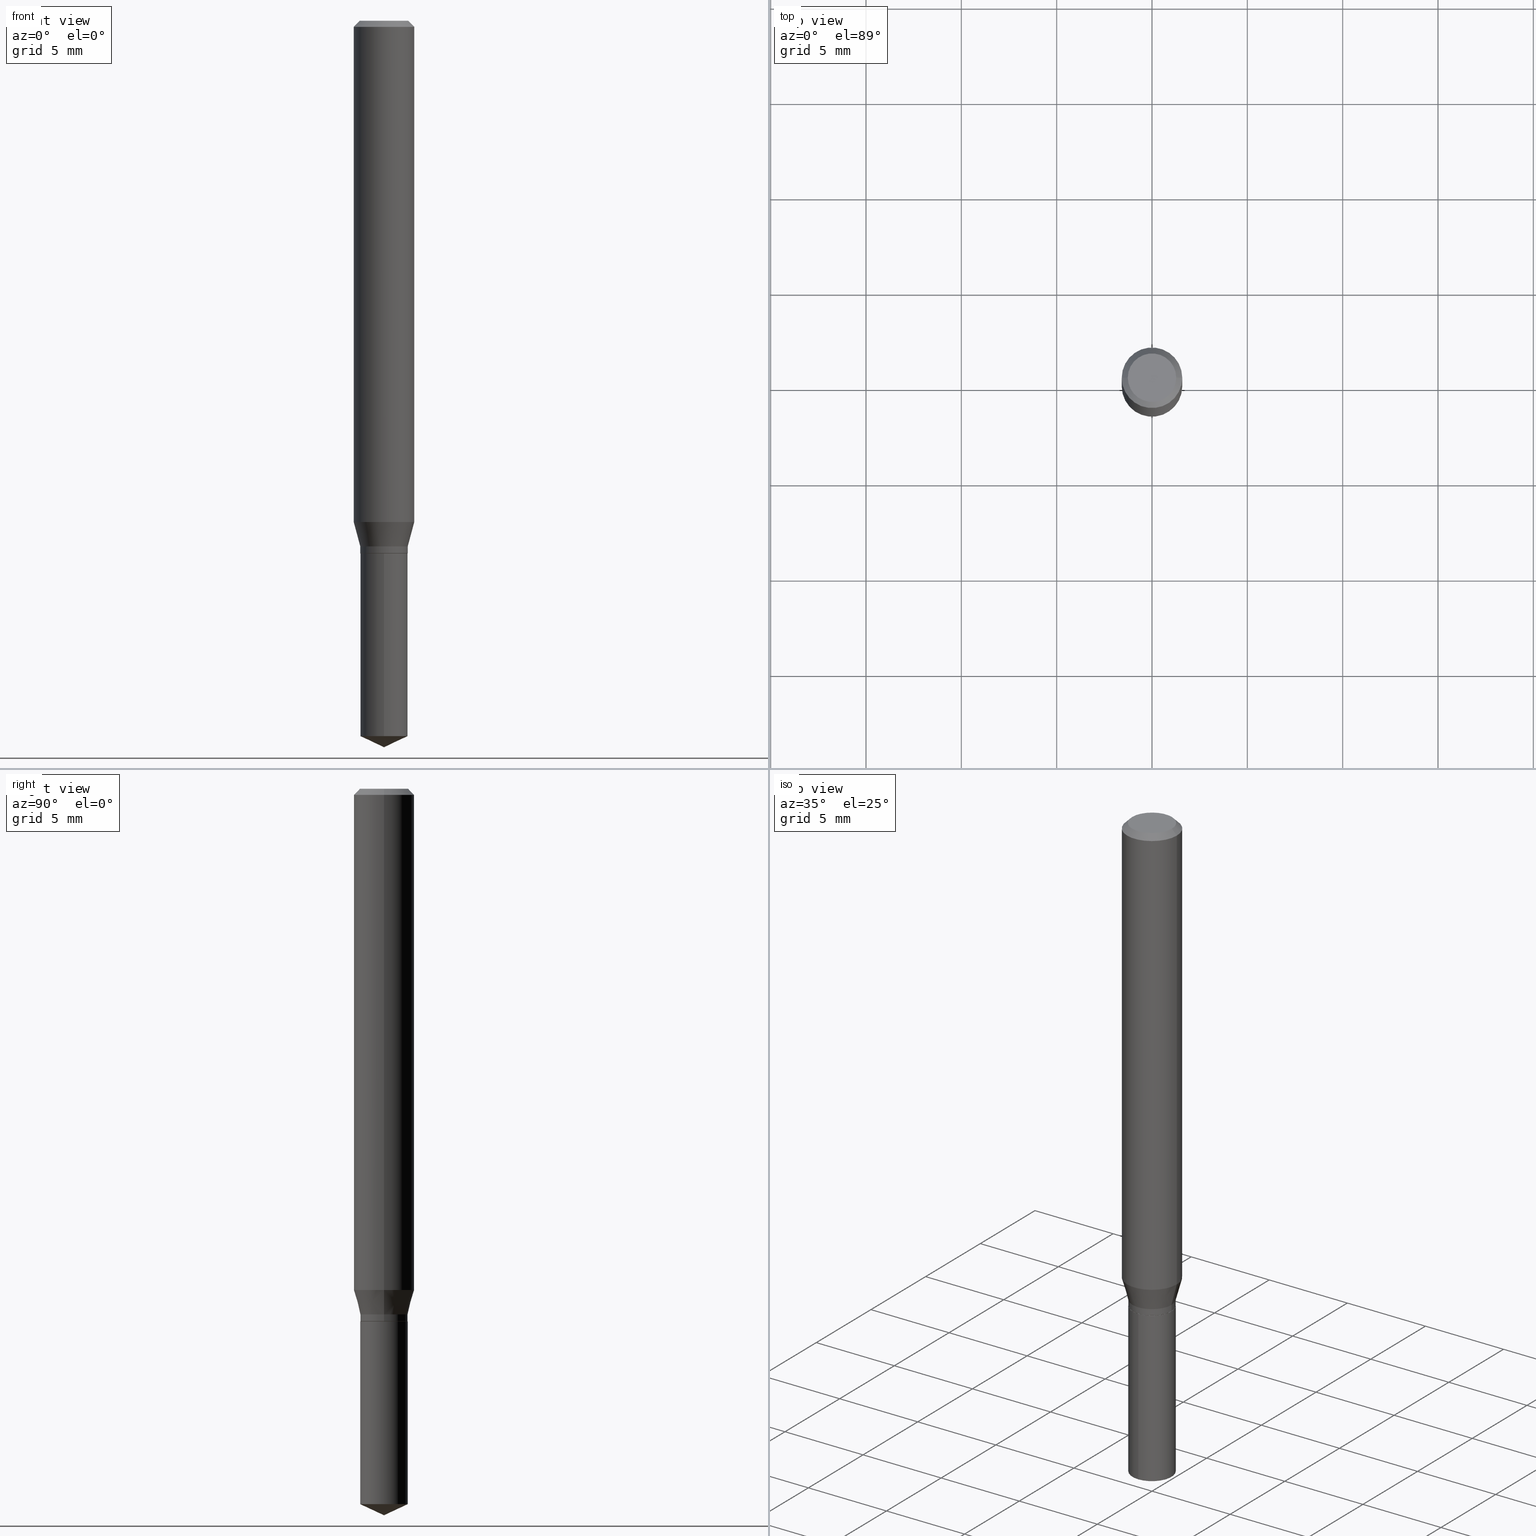
[diagram: canonical four-view strip — front | top / right | iso, engineering-drawing reading convention]
A machine part, canonical four-view strip (front | top / right | iso — engineering-drawing reading convention). The complete STEP part file that produces these views, byte-faithful:
ISO-10303-21;
HEADER;
FILE_DESCRIPTION (( 'STEP AP203' ),
    '1' );
FILE_NAME ('07206.STEP',
    '2024-04-23T20:00:11',
    ( '' ),
    ( '' ),
    'SwSTEP 2.0',
    'SolidWorks 2023',
    '' );
FILE_SCHEMA (( 'CONFIG_CONTROL_DESIGN' ));
ENDSEC;

DATA;
#1 = FACE_OUTER_BOUND ( 'NONE', #95, .T. ) ;
#2 = EDGE_CURVE ( 'NONE', #207, #227, #361, .T. ) ;
#3 = DIRECTION ( 'NONE',  ( -2.445468806185136877E-29, 3.491481338843145188E-15, 1.000000000000000000 ) ) ;
#4 = CARTESIAN_POINT ( 'NONE',  ( 0.000000000000000000, 0.000000000000000000, 0.000000000000000000 ) ) ;
#5 = CONICAL_SURFACE ( 'NONE', #208, 0.04850000000000000144, 0.7853981633974141952 ) ;
#6 = ADVANCED_FACE ( 'NONE', ( #23 ), #293, .T. ) ;
#7 = CIRCLE ( 'NONE', #54, 0.04900000000000000189 ) ;
#8 = DIRECTION ( 'NONE',  ( -2.445399690415121530E-29, 3.491580316559632610E-15, 1.000000000000000000 ) ) ;
#9 = DIRECTION ( 'NONE',  ( -2.445399690415121530E-29, 3.491580316559632610E-15, 1.000000000000000000 ) ) ;
#10 = DIRECTION ( 'NONE',  ( -6.982962677686265922E-15, -1.000000000000000000, 5.575199987069924823E-15 ) ) ;
#11 = EDGE_LOOP ( 'NONE', ( #166, #56, #323, #430 ) ) ;
#12 = VECTOR ( 'NONE', #338, 39.37007874015748143 ) ;
#13 = EDGE_CURVE ( 'NONE', #129, #97, #404, .T. ) ;
#14 = ORIENTED_EDGE ( 'NONE', *, *, #43, .T. ) ;
#15 = DIRECTION ( 'NONE',  ( 1.000000000000000000, -6.982962677686266711E-15, 0.000000000000000000 ) ) ;
#16 = EDGE_LOOP ( 'NONE', ( #289, #443, #461 ) ) ;
#17 = EDGE_CURVE ( 'NONE', #97, #210, #333, .T. ) ;
#18 = EDGE_LOOP ( 'NONE', ( #169, #109, #485, #393 ) ) ;
#19 = CARTESIAN_POINT ( 'NONE',  ( 3.056836007731442729E-31, -4.364351673553962300E-17, -0.01250000000000008916 ) ) ;
#20 = AXIS2_PLACEMENT_3D ( 'NONE', #452, #284, #380 ) ;
#21 = ORIENTED_EDGE ( 'NONE', *, *, #423, .F. ) ;
#22 = EDGE_CURVE ( 'NONE', #210, #165, #37, .T. ) ;
#23 = FACE_OUTER_BOUND ( 'NONE', #408, .T. ) ;
#24 = VERTEX_POINT ( 'NONE', #182 ) ;
#25 = CARTESIAN_POINT ( 'NONE',  ( 0.04900000000000000189, -3.421651712066270747E-16, 2.389326620140008440E-30 ) ) ;
#26 = CALENDAR_DATE ( 2024, 23, 4 ) ;
#27 = AXIS2_PLACEMENT_3D ( 'NONE', #115, #38, #311 ) ;
#28 = ORIENTED_EDGE ( 'NONE', *, *, #188, .T. ) ;
#29 = AXIS2_PLACEMENT_3D ( 'NONE', #19, #131, #15 ) ;
#30 = EDGE_CURVE ( 'NONE', #174, #24, #225, .T. ) ;
#31 = PRODUCT_DEFINITION_SHAPE ( 'NONE', 'NONE',  #219 ) ;
#32 = CARTESIAN_POINT ( 'NONE',  ( -0.04900000000000000189, -3.441138756524016918E-15, -1.085299999999999931 ) ) ;
#33 = ORIENTED_EDGE ( 'NONE', *, *, #22, .F. ) ;
#34 = DIRECTION ( 'NONE',  ( 1.000000000000000000, -6.982962677686265922E-15, 4.875957971899673662E-29 ) ) ;
#35 = LINE ( 'NONE', #446, #204 ) ;
#36 = DIRECTION ( 'NONE',  ( 1.000000000000000000, -6.982962677686264344E-15, 0.000000000000000000 ) ) ;
#37 = CIRCLE ( 'NONE', #368, 0.04900000000000000189 ) ;
#38 = DIRECTION ( 'NONE',  ( 2.445399690415121250E-29, -3.491580316559632610E-15, -1.000000000000000000 ) ) ;
#39 = CC_DESIGN_PERSON_AND_ORGANIZATION_ASSIGNMENT ( #112, #268, ( #314 ) ) ;
#40 = CARTESIAN_POINT ( 'NONE',  ( 1.946643104841063088E-47, -2.779290439833033990E-33, -7.960204194457798443E-19 ) ) ;
#41 = PLANE ( 'NONE',  #479 ) ;
#42 = CYLINDRICAL_SURFACE ( 'NONE', #392, 0.04900000000000000189 ) ;
#43 = EDGE_CURVE ( 'NONE', #248, #432, #104, .T. ) ;
#44 = FACE_OUTER_BOUND ( 'NONE', #292, .T. ) ;
#45 = FACE_OUTER_BOUND ( 'NONE', #222, .T. ) ;
#46 = EDGE_CURVE ( 'NONE', #227, #24, #260, .T. ) ;
#47 = VECTOR ( 'NONE', #106, 39.37007874015748143 ) ;
#48 = LINE ( 'NONE', #346, #249 ) ;
#49 = APPLICATION_CONTEXT ( 'configuration controlled 3d designs of mechanical parts and assemblies' ) ;
#50 = DIRECTION ( 'NONE',  ( 1.000000000000000000, -6.982962677686263555E-15, 0.000000000000000000 ) ) ;
#51 = EDGE_LOOP ( 'NONE', ( #426, #178, #132, #318 ) ) ;
#52 = ORIENTED_EDGE ( 'NONE', *, *, #59, .F. ) ;
#53 = CLOSED_SHELL ( 'NONE', ( #68, #223, #161, #389, #302 ) ) ;
#54 = AXIS2_PLACEMENT_3D ( 'NONE', #413, #382, #200 ) ;
#55 = CC_DESIGN_PERSON_AND_ORGANIZATION_ASSIGNMENT ( #436, #265, ( #314 ) ) ;
#56 = ORIENTED_EDGE ( 'NONE', *, *, #209, .T. ) ;
#57 = CARTESIAN_POINT ( 'NONE',  ( 0.06250000000000000000, -4.800786840909313294E-16, -0.01250000000000008916 ) ) ;
#58 = ORIENTED_EDGE ( 'NONE', *, *, #30, .F. ) ;
#59 = EDGE_CURVE ( 'NONE', #287, #227, #127, .T. ) ;
#60 = ORIENTED_EDGE ( 'NONE', *, *, #46, .F. ) ;
#61 = MANIFOLD_SOLID_BREP ( 'Body-Move/Copy2[1]', #53 ) ;
#62 = CC_DESIGN_PERSON_AND_ORGANIZATION_ASSIGNMENT ( #484, #192, ( #235 ) ) ;
#63 = CIRCLE ( 'NONE', #329, 0.04900000000000000189 ) ;
#64 = CIRCLE ( 'NONE', #29, 0.06250000000000000000 ) ;
#65 = ORIENTED_EDGE ( 'NONE', *, *, #362, .T. ) ;
#66 = ORIENTED_EDGE ( 'NONE', *, *, #2, .T. ) ;
#67 = LINE ( 'NONE', #32, #336 ) ;
#68 = ADVANCED_FACE ( 'NONE', ( #315 ), #42, .T. ) ;
#69 = PERSON_AND_ORGANIZATION ( #121, #184 ) ;
#70 = CARTESIAN_POINT ( 'NONE',  ( 2.654067295352728844E-29, -3.789304697046466319E-15, -1.085299999999999931 ) ) ;
#71 = DIRECTION ( 'NONE',  ( 2.438088387897960049E-29, -3.491481338843145188E-15, -1.000000000000000000 ) ) ;
#72 = FACE_OUTER_BOUND ( 'NONE', #296, .T. ) ;
#73 = CALENDAR_DATE ( 2024, 23, 4 ) ;
#74 = ADVANCED_FACE ( 'NONE', ( #155 ), #417, .T. ) ;
#75 = VECTOR ( 'NONE', #437, 39.37007874015748143 ) ;
#76 = ORIENTED_EDGE ( 'NONE', *, *, #273, .T. ) ;
#77 = CC_DESIGN_APPROVAL ( #82, ( #314 ) ) ;
#78 = DIRECTION ( 'NONE',  ( -2.445468806185136877E-29, 3.491481338843145188E-15, 1.000000000000000000 ) ) ;
#79 = ORIENTED_EDGE ( 'NONE', *, *, #22, .T. ) ;
#80 =( NAMED_UNIT ( * ) SI_UNIT ( $, .STERADIAN. ) SOLID_ANGLE_UNIT ( ) );
#81 = DIRECTION ( 'NONE',  ( -2.445468806185136597E-29, 3.491481338843145583E-15, 1.000000000000000000 ) ) ;
#82 = APPROVAL ( #481, 'UNSPECIFIED' ) ;
#83 = DIRECTION ( 'NONE',  ( -2.445468806185136597E-29, 3.491481338843145583E-15, 1.000000000000000000 ) ) ;
#84 = CARTESIAN_POINT ( 'NONE',  ( 3.612300441428068542E-29, -5.157482217958238587E-15, -1.477150924750405325 ) ) ;
#85 = AXIS2_PLACEMENT_3D ( 'NONE', #124, #280, #89 ) ;
#86 = AXIS2_PLACEMENT_3D ( 'NONE', #465, #213, #50 ) ;
#87 = CARTESIAN_POINT ( 'NONE',  ( -0.06250000000000000000, -1.384429793226810224E-15, -0.01250000000000008916 ) ) ;
#88 = CARTESIAN_POINT ( 'NONE',  ( 2.530858008607123662E-29, -3.613394489418208092E-15, -1.034917314097819840 ) ) ;
#89 = DIRECTION ( 'NONE',  ( -6.982962677686267499E-15, -1.000000000000000000, 3.520397390770434543E-15 ) ) ;
#90 = LINE ( 'NONE', #288, #108 ) ;
#91 = CARTESIAN_POINT ( 'NONE',  ( 0.04900000000000000189, -4.131469868253092851E-15, -1.085299999999999931 ) ) ;
#92 = VECTOR ( 'NONE', #3, 39.37007874015748143 ) ;
#93 = ORIENTED_EDGE ( 'NONE', *, *, #330, .F. ) ;
#94 = ORIENTED_EDGE ( 'NONE', *, *, #238, .F. ) ;
#95 = EDGE_LOOP ( 'NONE', ( #253, #93 ) ) ;
#96 =( GEOMETRIC_REPRESENTATION_CONTEXT ( 3 ) GLOBAL_UNCERTAINTY_ASSIGNED_CONTEXT ( ( #449 ) ) GLOBAL_UNIT_ASSIGNED_CONTEXT ( ( #438, #301, #80 ) ) REPRESENTATION_CONTEXT ( 'NONE', 'WORKASPACE' ) );
#97 = VERTEX_POINT ( 'NONE', #239 ) ;
#98 = ORIENTED_EDGE ( 'NONE', *, *, #283, .F. ) ;
#99 = AXIS2_PLACEMENT_3D ( 'NONE', #88, #281, #36 ) ;
#100 = APPROVAL_PERSON_ORGANIZATION ( #277, #434, #414 ) ;
#101 = APPROVAL_DATE_TIME ( #363, #434 ) ;
#102 = ORIENTED_EDGE ( 'NONE', *, *, #487, .F. ) ;
#103 = DATE_AND_TIME ( #143, #176 ) ;
#104 = LINE ( 'NONE', #482, #285 ) ;
#105 = DIRECTION ( 'NONE',  ( 1.000000000000000000, -6.982962677686261977E-15, 0.000000000000000000 ) ) ;
#106 = DIRECTION ( 'NONE',  ( -2.445468806185136877E-29, 3.491481338843145188E-15, 1.000000000000000000 ) ) ;
#107 = AXIS2_PLACEMENT_3D ( 'NONE', #483, #252, #242 ) ;
#108 = VECTOR ( 'NONE', #420, 39.37007874015747433 ) ;
#109 = ORIENTED_EDGE ( 'NONE', *, *, #250, .T. ) ;
#110 = VECTOR ( 'NONE', #416, 39.37007874015748143 ) ;
#111 = PLANE ( 'NONE',  #264 ) ;
#112 = PERSON_AND_ORGANIZATION ( #121, #184 ) ;
#113 = DIRECTION ( 'NONE',  ( -6.328713451373380423E-15, -0.9063077870366499367, 0.4226182617406991082 ) ) ;
#114 = CARTESIAN_POINT ( 'NONE',  ( 2.690015686803650369E-29, -3.840629472727460101E-15, -1.100000000000000089 ) ) ;
#115 = CARTESIAN_POINT ( 'NONE',  ( 2.690015686803650369E-29, -3.840629472727460101E-15, -1.100000000000000089 ) ) ;
#116 = LINE ( 'NONE', #317, #110 ) ;
#117 = CIRCLE ( 'NONE', #454, 0.04900000000000000189 ) ;
#118 = APPLICATION_PROTOCOL_DEFINITION ( 'international standard', 'config_control_design', 1994, #49 ) ;
#119 = LOCAL_TIME ( 16, 0, 11.00000000000000000, #376 ) ;
#120 = CARTESIAN_POINT ( 'NONE',  ( 0.04900000000000000189, -4.181048903264665130E-15, -1.099499999999999922 ) ) ;
#121 = PERSON ( 'UNSPECIFIED', 'UNSPECIFIED', 'UNSPECIFIED', ('UNSPECIFIED'), ('UNSPECIFIED'), ('UNSPECIFIED') ) ;
#122 = FACE_OUTER_BOUND ( 'NONE', #16, .T. ) ;
#123 = DIRECTION ( 'NONE',  ( -6.982962677686265922E-15, -1.000000000000000000, 2.787599993534962411E-15 ) ) ;
#124 = CARTESIAN_POINT ( 'NONE',  ( -9.260740279983036507E-28, 1.322265303911854087E-13, 37.87007874015748143 ) ) ;
#125 = DIRECTION ( 'NONE',  ( 1.000000000000000000, -6.982962677686263555E-15, 0.000000000000000000 ) ) ;
#126 = ORIENTED_EDGE ( 'NONE', *, *, #490, .T. ) ;
#127 = CIRCLE ( 'NONE', #444, 0.04900000000000000189 ) ;
#128 = AXIS2_PLACEMENT_3D ( 'NONE', #170, #324, #468 ) ;
#129 = VERTEX_POINT ( 'NONE', #383 ) ;
#130 = PRODUCT_RELATED_PRODUCT_CATEGORY ( 'detail', '', ( #187 ) ) ;
#131 = DIRECTION ( 'NONE',  ( -2.445468806185136597E-29, 3.491481338843145583E-15, 1.000000000000000000 ) ) ;
#132 = ORIENTED_EDGE ( 'NONE', *, *, #355, .T. ) ;
#133 = DIRECTION ( 'NONE',  ( -6.982962677686265922E-15, -1.000000000000000000, 2.787599993534962411E-15 ) ) ;
#134 = EDGE_LOOP ( 'NONE', ( #304, #79 ) ) ;
#135 = AXIS2_PLACEMENT_3D ( 'NONE', #274, #81, #278 ) ;
#136 = DIRECTION ( 'NONE',  ( -2.445399690415121530E-29, 3.491580316559632610E-15, 1.000000000000000000 ) ) ;
#137 = EDGE_LOOP ( 'NONE', ( #425, #28, #431, #33 ) ) ;
#138 = CARTESIAN_POINT ( 'NONE',  ( -0.04850000000000000144, -3.493367018709700793E-15, -1.100000000000000089 ) ) ;
#139 = ORIENTED_EDGE ( 'NONE', *, *, #2, .F. ) ;
#140 = DIRECTION ( 'NONE',  ( -2.445399690415121530E-29, 3.491580316559632610E-15, 1.000000000000000000 ) ) ;
#141 = DIRECTION ( 'NONE',  ( 1.000000000000000000, -6.982962677686266711E-15, 4.876176775795935232E-29 ) ) ;
#142 = CONICAL_SURFACE ( 'NONE', #86, 0.04900000000000000189, 0.2617993877991500740 ) ;
#143 = CALENDAR_DATE ( 2024, 23, 4 ) ;
#144 = ORIENTED_EDGE ( 'NONE', *, *, #372, .T. ) ;
#145 = CC_DESIGN_DATE_AND_TIME_ASSIGNMENT ( #262, #230, ( #219 ) ) ;
#146 = APPROVAL_DATE_TIME ( #185, #470 ) ;
#147 = DIRECTION ( 'NONE',  ( 0.7071067811865451302, -7.319954787623248157E-15, -0.7071067811865499042 ) ) ;
#148 = CARTESIAN_POINT ( 'NONE',  ( -0.06250000000000012490, -3.169305279568144687E-15, -1.034917314097819840 ) ) ;
#149 = APPROVAL_STATUS ( 'not_yet_approved' ) ;
#150 = DIRECTION ( 'NONE',  ( -2.445468806185136597E-29, 3.491481338843145583E-15, 1.000000000000000000 ) ) ;
#151 = AXIS2_PLACEMENT_3D ( 'NONE', #4, #243, #163 ) ;
#152 = LOCAL_TIME ( 16, 0, 11.00000000000000000, #158 ) ;
#153 = CARTESIAN_POINT ( 'NONE',  ( 2.690015686803650369E-29, -3.840629472727460101E-15, -1.100000000000000089 ) ) ;
#154 = CARTESIAN_POINT ( 'NONE',  ( 3.056836007731442729E-31, -4.364351673553962300E-17, -0.01250000000000008916 ) ) ;
#155 = FACE_OUTER_BOUND ( 'NONE', #247, .T. ) ;
#156 = DIRECTION ( 'NONE',  ( 1.000000000000000000, 0.000000000000000000, 0.000000000000000000 ) ) ;
#157 = CARTESIAN_POINT ( 'NONE',  ( 0.04850000000000000144, -4.179303162595243627E-15, -1.100000000000000089 ) ) ;
#158 = COORDINATED_UNIVERSAL_TIME_OFFSET ( 5, 0, .BEHIND. ) ;
#159 = CARTESIAN_POINT ( 'NONE',  ( 3.612300441428068542E-29, -5.157482217958238587E-15, -1.477150924750405325 ) ) ;
#160 = CONICAL_SURFACE ( 'NONE', #471, 0.04850000000000000144, 0.7853981633974141952 ) ;
#161 = ADVANCED_FACE ( 'NONE', ( #122 ), #175, .T. ) ;
#162 = DIRECTION ( 'NONE',  ( -1.000000000000000000, 6.982962677686266711E-15, 0.000000000000000000 ) ) ;
#163 = DIRECTION ( 'NONE',  ( 1.000000000000000000, -6.982962677686266711E-15, 4.876176775795935793E-29 ) ) ;
#164 = EDGE_CURVE ( 'NONE', #248, #475, #407, .T. ) ;
#165 = VERTEX_POINT ( 'NONE', #282 ) ;
#166 = ORIENTED_EDGE ( 'NONE', *, *, #30, .T. ) ;
#167 = CONICAL_SURFACE ( 'NONE', #275, 0.06250000000000000000, 0.7853981633974449483 ) ;
#168 = CC_DESIGN_APPROVAL ( #470, ( #235 ) ) ;
#169 = ORIENTED_EDGE ( 'NONE', *, *, #458, .F. ) ;
#170 = CARTESIAN_POINT ( 'NONE',  ( 3.056836007731442729E-31, -4.364351673553962300E-17, -0.01250000000000008916 ) ) ;
#171 = ORIENTED_EDGE ( 'NONE', *, *, #164, .T. ) ;
#172 = CC_DESIGN_PERSON_AND_ORGANIZATION_ASSIGNMENT ( #406, #453, ( #187 ) ) ;
#173 = CARTESIAN_POINT ( 'NONE',  ( -0.04900000000000000189, -3.465928274029803452E-15, -1.099499999999999922 ) ) ;
#174 = VERTEX_POINT ( 'NONE', #91 ) ;
#175 = CONICAL_SURFACE ( 'NONE', #85, 84.42940631927480410, 1.134464013796318005 ) ;
#176 = LOCAL_TIME ( 16, 0, 11.00000000000000000, #342 ) ;
#177 = ADVANCED_FACE ( 'NONE', ( #203 ), #160, .T. ) ;
#178 = ORIENTED_EDGE ( 'NONE', *, *, #439, .F. ) ;
#179 = DIRECTION ( 'NONE',  ( -1.000000000000000000, 6.982962677686266711E-15, 0.000000000000000000 ) ) ;
#180 = SECURITY_CLASSIFICATION_LEVEL ( 'unclassified' ) ;
#181 = CC_DESIGN_DATE_AND_TIME_ASSIGNMENT ( #103, #259, ( #235 ) ) ;
#182 = CARTESIAN_POINT ( 'NONE',  ( -0.04900000000000000189, -3.465928274029803452E-15, -1.085299999999999931 ) ) ;
#183 = DIRECTION ( 'NONE',  ( -2.445468806185136877E-29, 3.491481338843145188E-15, 1.000000000000000000 ) ) ;
#184 = ORGANIZATION ( 'UNSPECIFIED', 'UNSPECIFIED', '' ) ;
#185 = DATE_AND_TIME ( #26, #348 ) ;
#186 = CARTESIAN_POINT ( 'NONE',  ( 3.056836007731442729E-31, -4.364351673553962300E-17, -0.01250000000000008916 ) ) ;
#187 = PRODUCT ( '07206', '07206', '', ( #451 ) ) ;
#188 = EDGE_CURVE ( 'NONE', #97, #325, #63, .T. ) ;
#189 = APPROVAL_DATE_TIME ( #398, #82 ) ;
#190 = DIRECTION ( 'NONE',  ( 1.000000000000000000, -6.982962677686263555E-15, 0.000000000000000000 ) ) ;
#191 = EDGE_CURVE ( 'NONE', #129, #325, #35, .T. ) ;
#192 = PERSON_AND_ORGANIZATION_ROLE ( 'classification_officer' ) ;
#193 = CARTESIAN_POINT ( 'NONE',  ( -0.04999999999999999584, 3.709698922520826725E-16, -1.592040838894077649E-18 ) ) ;
#194 = CARTESIAN_POINT ( 'NONE',  ( 0.04999999999999999584, -4.077247707424184705E-16, -1.592040838888913461E-18 ) ) ;
#195 = AXIS2_PLACEMENT_3D ( 'NONE', #271, #381, #196 ) ;
#196 = DIRECTION ( 'NONE',  ( 1.000000000000000000, -6.982962677686265922E-15, 4.875957971899673662E-29 ) ) ;
#197 = DIRECTION ( 'NONE',  ( 0.000000000000000000, 0.000000000000000000, 1.000000000000000000 ) ) ;
#198 = CARTESIAN_POINT ( 'NONE',  ( -3.421651712065909350E-16, -0.04900000000000515749, -1.477150924750405103 ) ) ;
#199 = ADVANCED_FACE ( 'NONE', ( #352 ), #370, .T. ) ;
#200 = DIRECTION ( 'NONE',  ( 1.000000000000000000, -6.982962677686263555E-15, 0.000000000000000000 ) ) ;
#201 = DIRECTION ( 'NONE',  ( -6.982962677686265922E-15, -1.000000000000000000, 2.787599993534962411E-15 ) ) ;
#202 = CARTESIAN_POINT ( 'NONE',  ( 2.690015686803650369E-29, -3.840629472727460101E-15, -1.100000000000000089 ) ) ;
#203 = FACE_OUTER_BOUND ( 'NONE', #354, .T. ) ;
#204 = VECTOR ( 'NONE', #113, 39.37007874015748854 ) ;
#205 = DIRECTION ( 'NONE',  ( 0.7071067811865232589, -2.468850131082003836E-15, 0.7071067811865715536 ) ) ;
#206 = ORIENTED_EDGE ( 'NONE', *, *, #250, .F. ) ;
#207 = VERTEX_POINT ( 'NONE', #138 ) ;
#208 = AXIS2_PLACEMENT_3D ( 'NONE', #350, #345, #347 ) ;
#209 = EDGE_CURVE ( 'NONE', #24, #466, #67, .T. ) ;
#210 = VERTEX_POINT ( 'NONE', #440 ) ;
#211 = CARTESIAN_POINT ( 'NONE',  ( 3.893286209682126177E-47, -5.558580879666067980E-33, -1.592040838891559689E-18 ) ) ;
#212 = ORIENTED_EDGE ( 'NONE', *, *, #355, .F. ) ;
#213 = DIRECTION ( 'NONE',  ( -2.445468806185136597E-29, 3.491481338843145583E-15, 1.000000000000000000 ) ) ;
#214 = ORIENTED_EDGE ( 'NONE', *, *, #474, .T. ) ;
#215 = CC_DESIGN_APPROVAL ( #434, ( #219 ) ) ;
#216 = EDGE_CURVE ( 'NONE', #287, #174, #221, .T. ) ;
#217 = EDGE_LOOP ( 'NONE', ( #76, #357, #94, #291 ) ) ;
#218 = ADVANCED_BREP_SHAPE_REPRESENTATION ( '07206', ( #61, #228, #388 ), #96 ) ;
#219 = PRODUCT_DEFINITION ( 'UNKNOWN', '', #314, #351 ) ;
#220 = CARTESIAN_POINT ( 'NONE',  ( 2.690015686803650369E-29, -3.840629472727460101E-15, -1.100000000000000089 ) ) ;
#221 = LINE ( 'NONE', #25, #462 ) ;
#222 = EDGE_LOOP ( 'NONE', ( #139, #231, #144, #98 ) ) ;
#223 = ADVANCED_FACE ( 'NONE', ( #72 ), #428, .T. ) ;
#224 = DIRECTION ( 'NONE',  ( 1.000000000000000000, -6.982962677686264344E-15, 0.000000000000000000 ) ) ;
#225 = CIRCLE ( 'NONE', #488, 0.04900000000000000189 ) ;
#226 = CIRCLE ( 'NONE', #379, 0.04999999999999999584 ) ;
#227 = VERTEX_POINT ( 'NONE', #173 ) ;
#228 = MANIFOLD_SOLID_BREP ( 'Body-Move/Copy2[2]', #386 ) ;
#229 = LINE ( 'NONE', #233, #294 ) ;
#230 = DATE_TIME_ROLE ( 'creation_date' ) ;
#231 = ORIENTED_EDGE ( 'NONE', *, *, #330, .T. ) ;
#232 = FACE_OUTER_BOUND ( 'NONE', #18, .T. ) ;
#233 = CARTESIAN_POINT ( 'NONE',  ( 0.06250000000000006939, -4.364351673553921624E-16, 3.047610484872463374E-30 ) ) ;
#234 = DIRECTION ( 'NONE',  ( 1.000000000000000000, -6.982962677686266711E-15, 4.876176775795935793E-29 ) ) ;
#235 = SECURITY_CLASSIFICATION ( '', '', #180 ) ;
#236 = DIRECTION ( 'NONE',  ( -2.445468806185136597E-29, 3.491481338843145583E-15, 1.000000000000000000 ) ) ;
#237 = DIRECTION ( 'NONE',  ( 2.445468806185136597E-29, -3.491481338843145583E-15, -1.000000000000000000 ) ) ;
#238 = EDGE_CURVE ( 'NONE', #165, #210, #359, .T. ) ;
#239 = CARTESIAN_POINT ( 'NONE',  ( 3.481659405224852442E-16, 0.04899999999999485323, -1.477150924750405769 ) ) ;
#240 = CYLINDRICAL_SURFACE ( 'NONE', #151, 0.06250000000000006939 ) ;
#241 = ADVANCED_FACE ( 'NONE', ( #45 ), #5, .T. ) ;
#242 = DIRECTION ( 'NONE',  ( -6.982962677686267499E-15, -1.000000000000000000, 3.520397390770434543E-15 ) ) ;
#243 = DIRECTION ( 'NONE',  ( -2.445468806185136597E-29, 3.491481338843145583E-15, 1.000000000000000000 ) ) ;
#244 = AXIS2_PLACEMENT_3D ( 'NONE', #385, #136, #133 ) ;
#245 = VECTOR ( 'NONE', #390, 39.37007874015748143 ) ;
#246 = ADVANCED_FACE ( 'NONE', ( #232 ), #240, .T. ) ;
#247 = EDGE_LOOP ( 'NONE', ( #422, #295, #58, #464 ) ) ;
#248 = VERTEX_POINT ( 'NONE', #194 ) ;
#249 = VECTOR ( 'NONE', #205, 39.37007874015748854 ) ;
#250 = EDGE_CURVE ( 'NONE', #466, #254, #306, .T. ) ;
#251 = VERTEX_POINT ( 'NONE', #87 ) ;
#252 = DIRECTION ( 'NONE',  ( -2.445399690415121530E-29, 3.491580316559632610E-15, 1.000000000000000000 ) ) ;
#253 = ORIENTED_EDGE ( 'NONE', *, *, #474, .F. ) ;
#254 = VERTEX_POINT ( 'NONE', #384 ) ;
#255 = AXIS2_PLACEMENT_3D ( 'NONE', #310, #276, #450 ) ;
#256 = CC_DESIGN_SECURITY_CLASSIFICATION ( #235, ( #314 ) ) ;
#257 = CALENDAR_DATE ( 2024, 23, 4 ) ;
#258 = DIRECTION ( 'NONE',  ( -0.7071067811865232589, 7.493145998870265808E-15, 0.7071067811865715536 ) ) ;
#259 = DATE_TIME_ROLE ( 'classification_date' ) ;
#260 = LINE ( 'NONE', #300, #47 ) ;
#261 = DIRECTION ( 'NONE',  ( -2.445468806185136597E-29, 3.491481338843145583E-15, 1.000000000000000000 ) ) ;
#262 = DATE_AND_TIME ( #257, #119 ) ;
#263 = CARTESIAN_POINT ( 'NONE',  ( -0.04850000000000000144, -3.496016245883811994E-15, -1.100000000000000089 ) ) ;
#264 = AXIS2_PLACEMENT_3D ( 'NONE', #40, #71, #305 ) ;
#265 = PERSON_AND_ORGANIZATION_ROLE ( 'creator' ) ;
#266 = ORIENTED_EDGE ( 'NONE', *, *, #423, .T. ) ;
#267 = CARTESIAN_POINT ( 'NONE',  ( 2.530858008607123662E-29, -3.613394489418208092E-15, -1.034917314097819840 ) ) ;
#268 = PERSON_AND_ORGANIZATION_ROLE ( 'design_supplier' ) ;
#269 = ADVANCED_FACE ( 'NONE', ( #1 ), #41, .F. ) ;
#270 = DIRECTION ( 'NONE',  ( -2.438088387897960049E-29, 3.491481338843145188E-15, 1.000000000000000000 ) ) ;
#271 = CARTESIAN_POINT ( 'NONE',  ( 3.893286209682126177E-47, -5.558580879666067980E-33, -1.592040838891559689E-18 ) ) ;
#272 =( LENGTH_UNIT ( ) NAMED_UNIT ( * ) SI_UNIT ( $, .METRE. ) );
#273 = EDGE_CURVE ( 'NONE', #325, #97, #419, .T. ) ;
#274 = CARTESIAN_POINT ( 'NONE',  ( 2.654067295352728844E-29, -3.789304697046466319E-15, -1.085299999999999931 ) ) ;
#275 = AXIS2_PLACEMENT_3D ( 'NONE', #154, #237, #162 ) ;
#276 = DIRECTION ( 'NONE',  ( -2.445468806185136597E-29, 3.491481338843145583E-15, 1.000000000000000000 ) ) ;
#277 = PERSON_AND_ORGANIZATION ( #121, #184 ) ;
#278 = DIRECTION ( 'NONE',  ( 1.000000000000000000, -6.982962677686263555E-15, 0.000000000000000000 ) ) ;
#279 = ADVANCED_FACE ( 'NONE', ( #344 ), #167, .T. ) ;
#280 = DIRECTION ( 'NONE',  ( -2.445399690415121530E-29, 3.491580316559632610E-15, 1.000000000000000000 ) ) ;
#281 = DIRECTION ( 'NONE',  ( -2.445468806185136597E-29, 3.491481338843145583E-15, 1.000000000000000000 ) ) ;
#282 = CARTESIAN_POINT ( 'NONE',  ( -3.421651712066001549E-16, -0.04900000000000384603, -1.099999999999999867 ) ) ;
#283 = EDGE_CURVE ( 'NONE', #227, #287, #117, .T. ) ;
#284 = DIRECTION ( 'NONE',  ( -2.445468806185136597E-29, 3.491481338843145583E-15, 1.000000000000000000 ) ) ;
#285 = VECTOR ( 'NONE', #147, 39.37007874015748143 ) ;
#286 = CONICAL_SURFACE ( 'NONE', #135, 0.04900000000000000189, 0.2617993877991500740 ) ;
#287 = VERTEX_POINT ( 'NONE', #120 ) ;
#288 = CARTESIAN_POINT ( 'NONE',  ( 0.04900000000000000189, -4.131469868253092851E-15, -1.085299999999999931 ) ) ;
#289 = ORIENTED_EDGE ( 'NONE', *, *, #13, .F. ) ;
#290 = FACE_OUTER_BOUND ( 'NONE', #11, .T. ) ;
#291 = ORIENTED_EDGE ( 'NONE', *, *, #409, .F. ) ;
#292 = EDGE_LOOP ( 'NONE', ( #321, #65, #396, #206 ) ) ;
#293 = CONICAL_SURFACE ( 'NONE', #395, 0.06250000000000000000, 0.7853981633974449483 ) ;
#294 = VECTOR ( 'NONE', #78, 39.37007874015748143 ) ;
#295 = ORIENTED_EDGE ( 'NONE', *, *, #46, .T. ) ;
#296 = EDGE_LOOP ( 'NONE', ( #469, #360, #429 ) ) ;
#297 = VERTEX_POINT ( 'NONE', #157 ) ;
#298 = ORIENTED_EDGE ( 'NONE', *, *, #216, .T. ) ;
#299 = SHAPE_DEFINITION_REPRESENTATION ( #31, #218 ) ;
#300 = CARTESIAN_POINT ( 'NONE',  ( -0.04900000000000000189, 3.481659405224491045E-16, -2.410278194224903881E-30 ) ) ;
#301 =( NAMED_UNIT ( * ) PLANE_ANGLE_UNIT ( ) SI_UNIT ( $, .RADIAN. ) );
#302 = ADVANCED_FACE ( 'NONE', ( #316 ), #448, .F. ) ;
#303 = PERSON_AND_ORGANIZATION ( #121, #184 ) ;
#304 = ORIENTED_EDGE ( 'NONE', *, *, #238, .T. ) ;
#305 = DIRECTION ( 'NONE',  ( -1.000000000000000000, 6.982962677686265922E-15, -4.876176775795935793E-29 ) ) ;
#306 = CIRCLE ( 'NONE', #99, 0.06250000000000012490 ) ;
#307 = AXIS2_PLACEMENT_3D ( 'NONE', #456, #83, #234 ) ;
#308 = DIRECTION ( 'NONE',  ( -2.445399690415121530E-29, 3.491580316559632610E-15, 1.000000000000000000 ) ) ;
#309 = DIRECTION ( 'NONE',  ( -2.445468806185136597E-29, 3.491481338843145583E-15, 1.000000000000000000 ) ) ;
#310 = CARTESIAN_POINT ( 'NONE',  ( 0.000000000000000000, 0.000000000000000000, 0.000000000000000000 ) ) ;
#311 = DIRECTION ( 'NONE',  ( 6.982962677686265922E-15, 1.000000000000000000, -3.491580316559632610E-15 ) ) ;
#312 = APPROVAL_STATUS ( 'not_yet_approved' ) ;
#313 = FACE_OUTER_BOUND ( 'NONE', #137, .T. ) ;
#314 = PRODUCT_DEFINITION_FORMATION_WITH_SPECIFIED_SOURCE ( 'ANY', '', #187, .NOT_KNOWN. ) ;
#315 = FACE_OUTER_BOUND ( 'NONE', #217, .T. ) ;
#316 = FACE_OUTER_BOUND ( 'NONE', #134, .T. ) ;
#317 = CARTESIAN_POINT ( 'NONE',  ( -0.06250000000000000000, 3.927916506198520587E-16, -0.01250000000000008916 ) ) ;
#318 = ORIENTED_EDGE ( 'NONE', *, *, #427, .T. ) ;
#319 = VECTOR ( 'NONE', #258, 39.37007874015748854 ) ;
#320 = AXIS2_PLACEMENT_3D ( 'NONE', #114, #261, #105 ) ;
#321 = ORIENTED_EDGE ( 'NONE', *, *, #209, .F. ) ;
#322 = CARTESIAN_POINT ( 'NONE',  ( -3.421651712066001549E-16, -0.04900000000000384603, -1.099999999999999867 ) ) ;
#323 = ORIENTED_EDGE ( 'NONE', *, *, #490, .F. ) ;
#324 = DIRECTION ( 'NONE',  ( -2.445468806185136597E-29, 3.491481338843145583E-15, 1.000000000000000000 ) ) ;
#325 = VERTEX_POINT ( 'NONE', #198 ) ;
#326 = ADVANCED_FACE ( 'NONE', ( #460 ), #411, .T. ) ;
#327 = AXIS2_PLACEMENT_3D ( 'NONE', #332, #365, #141 ) ;
#328 = EDGE_LOOP ( 'NONE', ( #126, #394, #21, #102 ) ) ;
#329 = AXIS2_PLACEMENT_3D ( 'NONE', #84, #9, #373 ) ;
#330 = EDGE_CURVE ( 'NONE', #207, #297, #369, .T. ) ;
#331 = ORIENTED_EDGE ( 'NONE', *, *, #164, .F. ) ;
#332 = CARTESIAN_POINT ( 'NONE',  ( 0.000000000000000000, 0.000000000000000000, 0.000000000000000000 ) ) ;
#333 = LINE ( 'NONE', #477, #12 ) ;
#334 = PERSON_AND_ORGANIZATION_ROLE ( 'creator' ) ;
#335 = DIRECTION ( 'NONE',  ( -2.445468806185136597E-29, 3.491481338843145583E-15, 1.000000000000000000 ) ) ;
#336 = VECTOR ( 'NONE', #435, 39.37007874015747433 ) ;
#337 = AXIS2_PLACEMENT_3D ( 'NONE', #267, #339, #224 ) ;
#338 = DIRECTION ( 'NONE',  ( -2.445399690415121810E-29, 3.491580316559632610E-15, 1.000000000000000000 ) ) ;
#339 = DIRECTION ( 'NONE',  ( -2.445468806185136597E-29, 3.491481338843145583E-15, 1.000000000000000000 ) ) ;
#340 = APPROVAL_ROLE ( '' ) ;
#341 = CARTESIAN_POINT ( 'NONE',  ( 2.688792952400557567E-29, -3.838883732058038598E-15, -1.099499999999999922 ) ) ;
#342 = COORDINATED_UNIVERSAL_TIME_OFFSET ( 5, 0, .BEHIND. ) ;
#343 = CIRCLE ( 'NONE', #128, 0.06250000000000000000 ) ;
#344 = FACE_OUTER_BOUND ( 'NONE', #51, .T. ) ;
#345 = DIRECTION ( 'NONE',  ( -2.445468806185136597E-29, 3.491481338843145583E-15, 1.000000000000000000 ) ) ;
#346 = CARTESIAN_POINT ( 'NONE',  ( 0.04850000000000000144, -4.179303162595243627E-15, -1.100000000000000089 ) ) ;
#347 = DIRECTION ( 'NONE',  ( 1.000000000000000000, -6.982962677686261977E-15, 0.000000000000000000 ) ) ;
#348 = LOCAL_TIME ( 16, 0, 11.00000000000000000, #366 ) ;
#349 = CARTESIAN_POINT ( 'NONE',  ( 2.690015686803650369E-29, -3.840629472727460101E-15, -1.100000000000000089 ) ) ;
#350 = CARTESIAN_POINT ( 'NONE',  ( 2.690015686803650369E-29, -3.840629472727460101E-15, -1.100000000000000089 ) ) ;
#351 = DESIGN_CONTEXT ( 'detailed design', #49, 'design' ) ;
#352 = FACE_OUTER_BOUND ( 'NONE', #367, .T. ) ;
#353 = CIRCLE ( 'NONE', #337, 0.06250000000000012490 ) ;
#354 = EDGE_LOOP ( 'NONE', ( #214, #66, #52, #391 ) ) ;
#355 = EDGE_CURVE ( 'NONE', #475, #251, #116, .T. ) ;
#356 = DIRECTION ( 'NONE',  ( -2.445468806185136597E-29, 3.491481338843145583E-15, 1.000000000000000000 ) ) ;
#357 = ORIENTED_EDGE ( 'NONE', *, *, #17, .T. ) ;
#358 = ADVANCED_FACE ( 'NONE', ( #44 ), #286, .T. ) ;
#359 = CIRCLE ( 'NONE', #244, 0.04900000000000000189 ) ;
#360 = ORIENTED_EDGE ( 'NONE', *, *, #13, .T. ) ;
#361 = LINE ( 'NONE', #263, #319 ) ;
#362 = EDGE_CURVE ( 'NONE', #24, #174, #7, .T. ) ;
#363 = DATE_AND_TIME ( #442, #152 ) ;
#364 = DIRECTION ( 'NONE',  ( -6.982962677686265922E-15, -1.000000000000000000, 2.787599993534962411E-15 ) ) ;
#365 = DIRECTION ( 'NONE',  ( -2.445468806185136597E-29, 3.491481338843145583E-15, 1.000000000000000000 ) ) ;
#366 = COORDINATED_UNIVERSAL_TIME_OFFSET ( 5, 0, .BEHIND. ) ;
#367 = EDGE_LOOP ( 'NONE', ( #60, #441, #298, #473 ) ) ;
#368 = AXIS2_PLACEMENT_3D ( 'NONE', #220, #140, #364 ) ;
#369 = CIRCLE ( 'NONE', #20, 0.04850000000000000144 ) ;
#370 = CYLINDRICAL_SURFACE ( 'NONE', #327, 0.04900000000000000189 ) ;
#371 = DIRECTION ( 'NONE',  ( 2.445468806185136597E-29, -3.491481338843145583E-15, -1.000000000000000000 ) ) ;
#372 = EDGE_CURVE ( 'NONE', #297, #287, #48, .T. ) ;
#373 = DIRECTION ( 'NONE',  ( -6.982962677686265922E-15, -1.000000000000000000, 5.575199987069924823E-15 ) ) ;
#374 = APPLICATION_PROTOCOL_DEFINITION ( 'international standard', 'config_control_design', 1994, #486 ) ;
#375 = DIRECTION ( 'NONE',  ( 1.000000000000000000, -6.982962677686265922E-15, 4.876176775795935793E-29 ) ) ;
#376 = COORDINATED_UNIVERSAL_TIME_OFFSET ( 5, 0, .BEHIND. ) ;
#377 = CARTESIAN_POINT ( 'NONE',  ( 0.000000000000000000, 0.000000000000000000, 0.000000000000000000 ) ) ;
#378 = AXIS2_PLACEMENT_3D ( 'NONE', #159, #387, #10 ) ;
#379 = AXIS2_PLACEMENT_3D ( 'NONE', #211, #356, #34 ) ;
#380 = DIRECTION ( 'NONE',  ( 1.000000000000000000, -6.982962677686261977E-15, 0.000000000000000000 ) ) ;
#381 = DIRECTION ( 'NONE',  ( -2.445468806185136597E-29, 3.491481338843145583E-15, 1.000000000000000000 ) ) ;
#382 = DIRECTION ( 'NONE',  ( -2.445468806185136597E-29, 3.491481338843145583E-15, 1.000000000000000000 ) ) ;
#383 = CARTESIAN_POINT ( 'NONE',  ( 3.668099535622682715E-29, -5.237370474839449507E-15, -1.500000000000000222 ) ) ;
#384 = CARTESIAN_POINT ( 'NONE',  ( 0.06250000000000012490, -4.049829656773600550E-15, -1.034917314097819840 ) ) ;
#385 = CARTESIAN_POINT ( 'NONE',  ( 2.690015686803650369E-29, -3.840629472727460101E-15, -1.100000000000000089 ) ) ;
#386 = CLOSED_SHELL ( 'NONE', ( #177, #6, #326, #418, #74, #199, #358, #246, #279, #467, #269, #241 ) ) ;
#387 = DIRECTION ( 'NONE',  ( -2.445399690415121530E-29, 3.491580316559632610E-15, 1.000000000000000000 ) ) ;
#388 = AXIS2_PLACEMENT_3D ( 'NONE', #377, #197, #156 ) ;
#389 = ADVANCED_FACE ( 'NONE', ( #313 ), #455, .T. ) ;
#390 = DIRECTION ( 'NONE',  ( -2.445399690415121810E-29, 3.491580316559632610E-15, 1.000000000000000000 ) ) ;
#391 = ORIENTED_EDGE ( 'NONE', *, *, #372, .F. ) ;
#392 = AXIS2_PLACEMENT_3D ( 'NONE', #153, #308, #201 ) ;
#393 = ORIENTED_EDGE ( 'NONE', *, *, #427, .F. ) ;
#394 = ORIENTED_EDGE ( 'NONE', *, *, #458, .T. ) ;
#395 = AXIS2_PLACEMENT_3D ( 'NONE', #186, #371, #179 ) ;
#396 = ORIENTED_EDGE ( 'NONE', *, *, #405, .T. ) ;
#397 = CIRCLE ( 'NONE', #320, 0.04850000000000000144 ) ;
#398 = DATE_AND_TIME ( #73, #421 ) ;
#399 = CARTESIAN_POINT ( 'NONE',  ( 3.668252923656895710E-29, -5.237152723863177100E-15, -1.500000000000000222 ) ) ;
#400 = APPROVAL_ROLE ( '' ) ;
#401 = ORIENTED_EDGE ( 'NONE', *, *, #439, .T. ) ;
#402 = LINE ( 'NONE', #445, #92 ) ;
#403 = COORDINATED_UNIVERSAL_TIME_OFFSET ( 5, 0, .BEHIND. ) ;
#404 = LINE ( 'NONE', #399, #75 ) ;
#405 = EDGE_CURVE ( 'NONE', #174, #254, #90, .T. ) ;
#406 = PERSON_AND_ORGANIZATION ( #121, #184 ) ;
#407 = CIRCLE ( 'NONE', #195, 0.04999999999999999584 ) ;
#408 = EDGE_LOOP ( 'NONE', ( #331, #14, #266, #212 ) ) ;
#409 = EDGE_CURVE ( 'NONE', #325, #165, #424, .T. ) ;
#410 = LENGTH_MEASURE_WITH_UNIT ( LENGTH_MEASURE( 0.02539999999999999897 ), #272 );
#411 = CYLINDRICAL_SURFACE ( 'NONE', #307, 0.06250000000000006939 ) ;
#412 = DIRECTION ( 'NONE',  ( 1.000000000000000000, -6.982962677686261977E-15, 0.000000000000000000 ) ) ;
#413 = CARTESIAN_POINT ( 'NONE',  ( 2.654067295352728844E-29, -3.789304697046466319E-15, -1.085299999999999931 ) ) ;
#414 = APPROVAL_ROLE ( '' ) ;
#415 = CARTESIAN_POINT ( 'NONE',  ( 2.690015686803650369E-29, -3.840629472727460101E-15, -1.100000000000000089 ) ) ;
#416 = DIRECTION ( 'NONE',  ( -0.7071067811865451302, 2.468850131082231817E-15, -0.7071067811865499042 ) ) ;
#417 = CYLINDRICAL_SURFACE ( 'NONE', #255, 0.04900000000000000189 ) ;
#418 = ADVANCED_FACE ( 'NONE', ( #290 ), #142, .T. ) ;
#419 = CIRCLE ( 'NONE', #378, 0.04900000000000000189 ) ;
#420 = DIRECTION ( 'NONE',  ( 0.2588190451025213501, 1.565188264969621968E-15, 0.9659258262890682012 ) ) ;
#421 = LOCAL_TIME ( 16, 0, 11.00000000000000000, #403 ) ;
#422 = ORIENTED_EDGE ( 'NONE', *, *, #59, .T. ) ;
#423 = EDGE_CURVE ( 'NONE', #432, #251, #64, .T. ) ;
#424 = LINE ( 'NONE', #322, #245 ) ;
#425 = ORIENTED_EDGE ( 'NONE', *, *, #17, .F. ) ;
#426 = ORIENTED_EDGE ( 'NONE', *, *, #43, .F. ) ;
#427 = EDGE_CURVE ( 'NONE', #251, #432, #343, .T. ) ;
#428 = CONICAL_SURFACE ( 'NONE', #107, 84.42940631927480410, 1.134464013796318005 ) ;
#429 = ORIENTED_EDGE ( 'NONE', *, *, #273, .F. ) ;
#430 = ORIENTED_EDGE ( 'NONE', *, *, #405, .F. ) ;
#431 = ORIENTED_EDGE ( 'NONE', *, *, #409, .T. ) ;
#432 = VERTEX_POINT ( 'NONE', #57 ) ;
#433 = APPROVAL_PERSON_ORGANIZATION ( #478, #82, #340 ) ;
#434 = APPROVAL ( #312, 'UNSPECIFIED' ) ;
#435 = DIRECTION ( 'NONE',  ( -0.2588190451025213501, 5.211531920934551042E-15, 0.9659258262890682012 ) ) ;
#436 = PERSON_AND_ORGANIZATION ( #121, #184 ) ;
#437 = DIRECTION ( 'NONE',  ( 6.439704144417036664E-15, 0.9063077870366530453, 0.4226182617406928910 ) ) ;
#438 =( CONVERSION_BASED_UNIT ( 'INCH', #410 ) LENGTH_UNIT ( ) NAMED_UNIT ( #457 ) );
#439 = EDGE_CURVE ( 'NONE', #475, #248, #226, .T. ) ;
#440 = CARTESIAN_POINT ( 'NONE',  ( 3.481659405224851949E-16, 0.04899999999999615080, -1.100000000000000089 ) ) ;
#441 = ORIENTED_EDGE ( 'NONE', *, *, #283, .T. ) ;
#442 = CALENDAR_DATE ( 2024, 23, 4 ) ;
#443 = ORIENTED_EDGE ( 'NONE', *, *, #191, .T. ) ;
#444 = AXIS2_PLACEMENT_3D ( 'NONE', #341, #150, #459 ) ;
#445 = CARTESIAN_POINT ( 'NONE',  ( -0.06250000000000006939, 4.440892098500631092E-16, -3.074334431409319267E-30 ) ) ;
#446 = CARTESIAN_POINT ( 'NONE',  ( 3.668099535622682155E-29, -5.237370474839448718E-15, -1.500000000000000222 ) ) ;
#447 = FACE_OUTER_BOUND ( 'NONE', #480, .T. ) ;
#448 = PLANE ( 'NONE',  #27 ) ;
#449 = UNCERTAINTY_MEASURE_WITH_UNIT (LENGTH_MEASURE( 1.000000000000000082E-05 ), #438, 'distance_accuracy_value', 'NONE');
#450 = DIRECTION ( 'NONE',  ( 1.000000000000000000, -6.982962677686266711E-15, 4.876176775795935232E-29 ) ) ;
#451 = MECHANICAL_CONTEXT ( 'NONE', #486, 'mechanical' ) ;
#452 = CARTESIAN_POINT ( 'NONE',  ( 2.690015686803650369E-29, -3.840629472727460101E-15, -1.100000000000000089 ) ) ;
#453 = PERSON_AND_ORGANIZATION_ROLE ( 'design_owner' ) ;
#454 = AXIS2_PLACEMENT_3D ( 'NONE', #489, #309, #125 ) ;
#455 = CYLINDRICAL_SURFACE ( 'NONE', #472, 0.04900000000000000189 ) ;
#456 = CARTESIAN_POINT ( 'NONE',  ( 0.000000000000000000, 0.000000000000000000, 0.000000000000000000 ) ) ;
#457 = DIMENSIONAL_EXPONENTS ( 1.000000000000000000, 0.000000000000000000, 0.000000000000000000, 0.000000000000000000, 0.000000000000000000, 0.000000000000000000, 0.000000000000000000 ) ;
#458 = EDGE_CURVE ( 'NONE', #466, #251, #402, .T. ) ;
#459 = DIRECTION ( 'NONE',  ( 1.000000000000000000, -6.982962677686263555E-15, 0.000000000000000000 ) ) ;
#460 = FACE_OUTER_BOUND ( 'NONE', #328, .T. ) ;
#461 = ORIENTED_EDGE ( 'NONE', *, *, #188, .F. ) ;
#462 = VECTOR ( 'NONE', #183, 39.37007874015748143 ) ;
#463 = APPROVAL_PERSON_ORGANIZATION ( #69, #470, #400 ) ;
#464 = ORIENTED_EDGE ( 'NONE', *, *, #216, .F. ) ;
#465 = CARTESIAN_POINT ( 'NONE',  ( 2.654067295352728844E-29, -3.789304697046466319E-15, -1.085299999999999931 ) ) ;
#466 = VERTEX_POINT ( 'NONE', #148 ) ;
#467 = ADVANCED_FACE ( 'NONE', ( #447 ), #111, .F. ) ;
#468 = DIRECTION ( 'NONE',  ( 1.000000000000000000, -6.982962677686266711E-15, 0.000000000000000000 ) ) ;
#469 = ORIENTED_EDGE ( 'NONE', *, *, #191, .F. ) ;
#470 = APPROVAL ( #149, 'UNSPECIFIED' ) ;
#471 = AXIS2_PLACEMENT_3D ( 'NONE', #349, #236, #412 ) ;
#472 = AXIS2_PLACEMENT_3D ( 'NONE', #202, #8, #123 ) ;
#473 = ORIENTED_EDGE ( 'NONE', *, *, #362, .F. ) ;
#474 = EDGE_CURVE ( 'NONE', #297, #207, #397, .T. ) ;
#475 = VERTEX_POINT ( 'NONE', #193 ) ;
#476 = CC_DESIGN_PERSON_AND_ORGANIZATION_ASSIGNMENT ( #303, #334, ( #219 ) ) ;
#477 = CARTESIAN_POINT ( 'NONE',  ( 3.481659405224759258E-16, 0.04899999999999615774, -1.100000000000000089 ) ) ;
#478 = PERSON_AND_ORGANIZATION ( #121, #184 ) ;
#479 = AXIS2_PLACEMENT_3D ( 'NONE', #415, #270, #375 ) ;
#480 = EDGE_LOOP ( 'NONE', ( #401, #171 ) ) ;
#481 = APPROVAL_STATUS ( 'not_yet_approved' ) ;
#482 = CARTESIAN_POINT ( 'NONE',  ( 0.06250000000000000000, -4.724246415962603826E-16, -0.01250000000000008916 ) ) ;
#483 = CARTESIAN_POINT ( 'NONE',  ( -9.260740279983036507E-28, 1.322265303911854087E-13, 37.87007874015748143 ) ) ;
#484 = PERSON_AND_ORGANIZATION ( #121, #184 ) ;
#485 = ORIENTED_EDGE ( 'NONE', *, *, #487, .T. ) ;
#486 = APPLICATION_CONTEXT ( 'configuration controlled 3d designs of mechanical parts and assemblies' ) ;
#487 = EDGE_CURVE ( 'NONE', #254, #432, #229, .T. ) ;
#488 = AXIS2_PLACEMENT_3D ( 'NONE', #70, #335, #190 ) ;
#489 = CARTESIAN_POINT ( 'NONE',  ( 2.688792952400557567E-29, -3.838883732058038598E-15, -1.099499999999999922 ) ) ;
#490 = EDGE_CURVE ( 'NONE', #254, #466, #353, .T. ) ;
ENDSEC;
END-ISO-10303-21;
